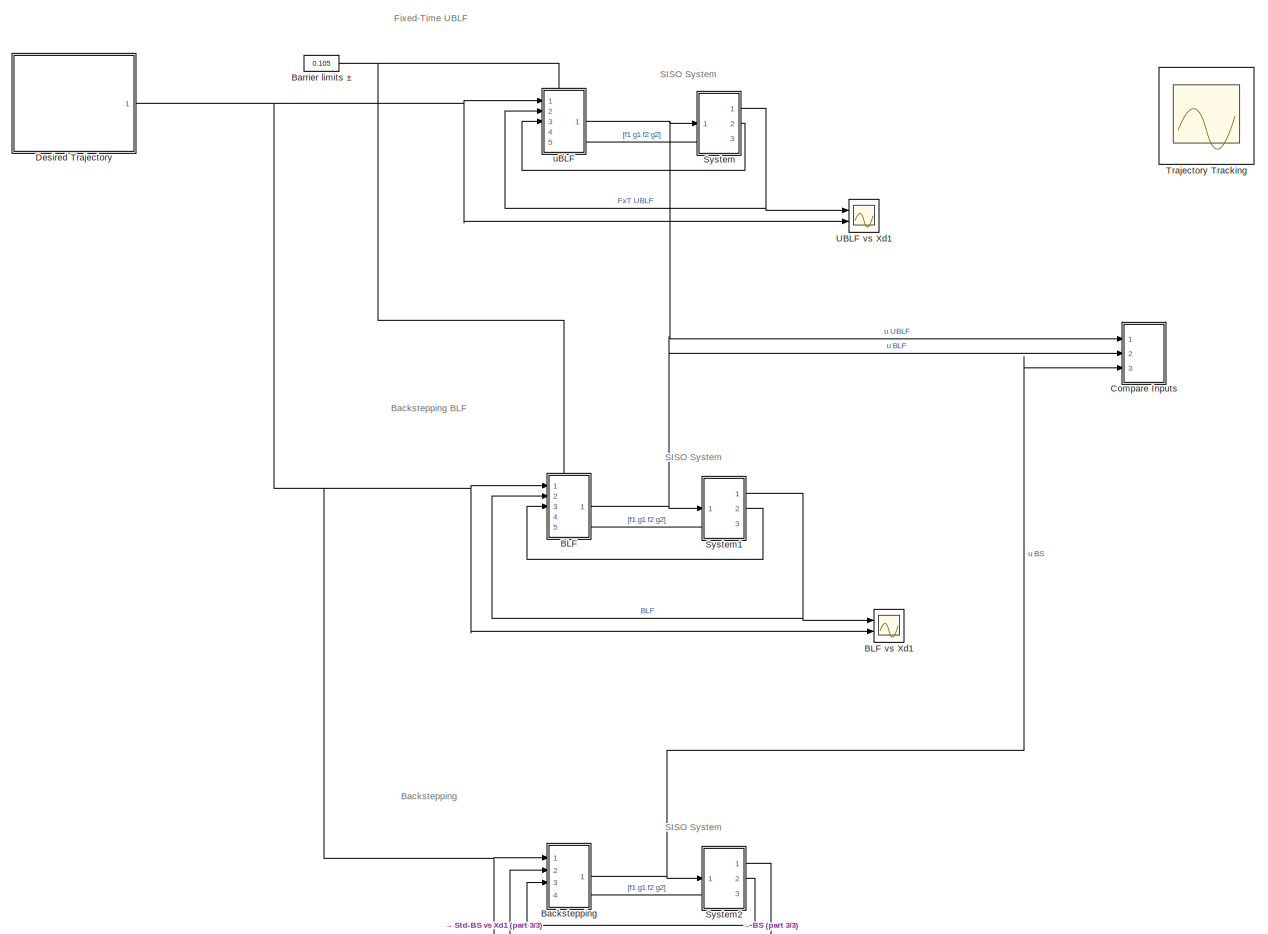
[diagram: root canvas - part 1/3, most of the canvas]
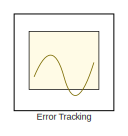
[diagram: root canvas - part 2/3, top right region]
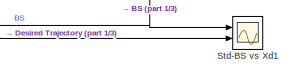
[diagram: root canvas - part 3/3, bottom center region]
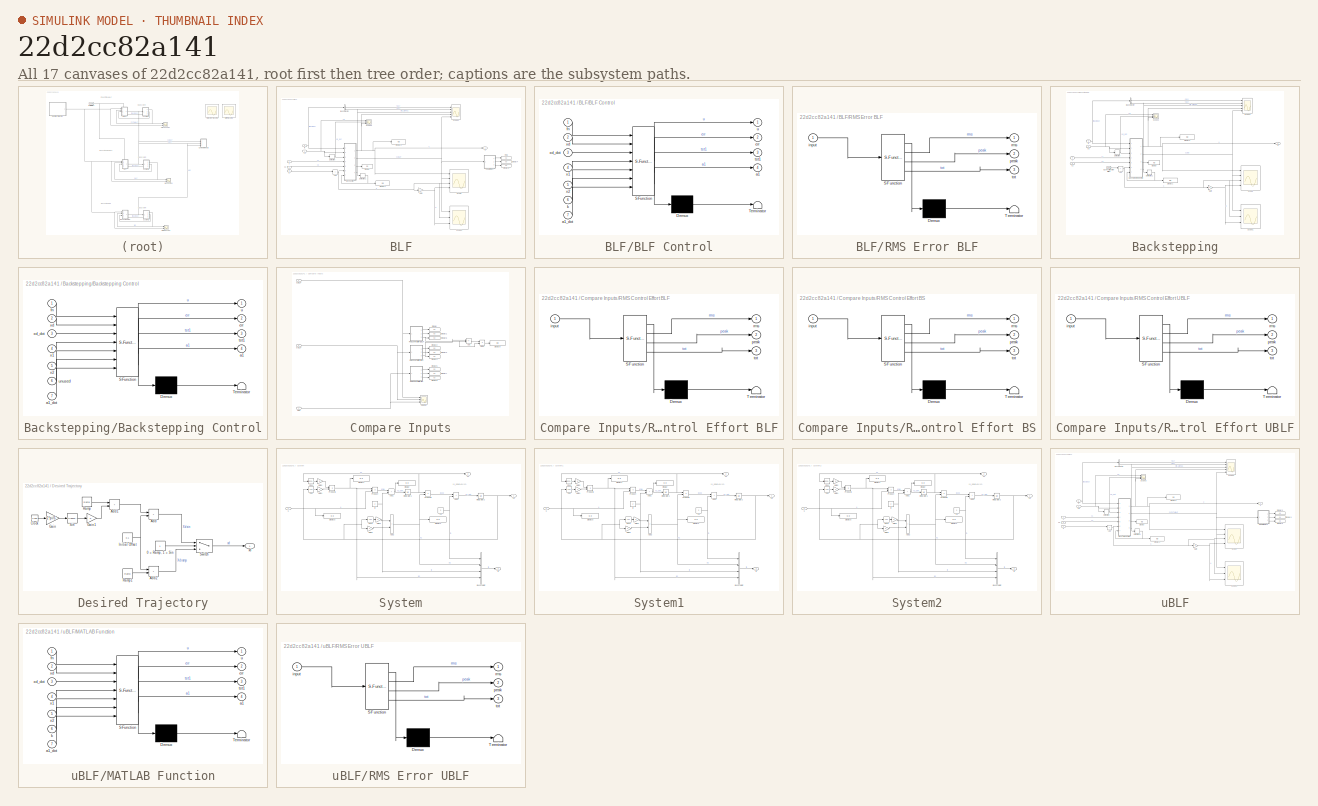
[diagram: thumbnail index - all 17 canvases of the model, root first then tree order]
MODEL slx_22d2cc82a141
KIND model
CONFIG AbsTol = auto
CONFIG EnableMultiTasking = off
CONFIG FixedStep = 0.001
CONFIG MaxStep = auto
CONFIG MinStep = auto
CONFIG RelTol = 1e-3
CONFIG SampleTimeConstraint = Unconstrained
CONFIG SolverName = ode4
CONFIG StartTime = 0.0
CONFIG StopTime = 1.5
WORKSPACE source: mxarray member
WORKSPACE scale_start: Simulink.Signal (value not decoded)
BLOCK [SubSystem] BLF
  PortSchema = {"entries":[{"content":{"sides":[{"content":{"connectorIds":["In1","In2","In3"]},"type":"ConnectorPlacement.EquallySpacedRectSide","uuid":"d2f7d382-6195-45e8-bd6d-6d057452a9ba"},{"content":{"connectorIds":["In5","Out1"],"side":"RIGHT"},"type":"ConnectorPlacement.EquallySpacedRectSide","uuid":"a1535a06-1066-4f88-a239-6dd18a46e73c"},{"content":{"connectorIds":["In4"],"side":"TOP"},"type":"ConnectorP...<+263ch>
  Ports = [5, 1]
  RequestExecContextInheritance = off
BLOCK [Scope] BLF vs Xd1
  Floating = off
  NumInputPorts = 2
  Ports = [2]
  ScopeSpecificationString = Simulink.scopes.TimeScopeBlockCfg('CurrentConfiguration', extmgr.ConfigurationSet(extmgr.Configuration('Core','General UI',true),extmgr.Configuration('Core','Source UI',true),extmgr.Configuration('Sources','WiredSimulink',true,'DataLoggingVariableName','ScopeData1'),extmgr.Configuration('Visuals','Time Domain',true,'SerializedDisplays',{struct('MinYLimReal','-0.75','MaxYLimReal','6.75','YLabelReal...<+1708ch>
BLOCK [Sum] BLF/Add
  IconShape = rectangular
  Ports = [2, 1]
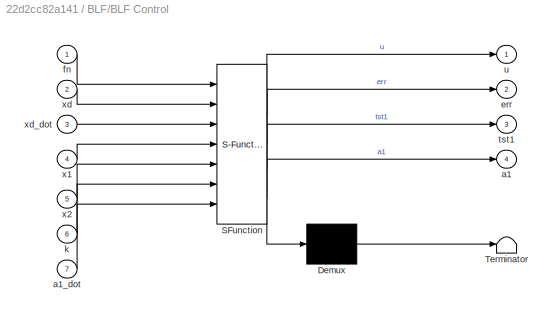
BLOCK [SubSystem] BLF/BLF Control
  ErrorFcn = Stateflow.Translate.translate
  NameLocation = top
  PermitHierarchicalResolution = ExplicitOnly
  Ports = [7, 4]
  RequestExecContextInheritance = off
  SFBlockType = MATLAB Function
  TreatAsAtomicUnit = on
BLOCK [Demux] BLF/BLF Control/ Demux 
  Outputs = 1
  Ports = [1, 1]
BLOCK [S-Function] BLF/BLF Control/ SFunction 
  EnableBusSupport = on
  FunctionName = sf_sfun
  PortCounts = [7 5]
  Ports = [7, 5]
  SFcnIsStateOwnerBlock = off
  SFunctionDeploymentMode = off
  Tag = Stateflow S-Function 3
BLOCK [Terminator] BLF/BLF Control/ Terminator 
BLOCK [Outport] BLF/BLF Control/a1
  Port = 4
BLOCK [Inport] BLF/BLF Control/a1_dot
  Port = 7
BLOCK [Outport] BLF/BLF Control/err
  Port = 2
BLOCK [Inport] BLF/BLF Control/fn
BLOCK [Inport] BLF/BLF Control/k
  Port = 6
BLOCK [Outport] BLF/BLF Control/tst1
  Port = 3
BLOCK [Outport] BLF/BLF Control/u
BLOCK [Inport] BLF/BLF Control/x1
  Port = 4
BLOCK [Inport] BLF/BLF Control/x2
  Port = 5
BLOCK [Inport] BLF/BLF Control/xd
  Port = 2
BLOCK [Inport] BLF/BLF Control/xd_dot
  Port = 3
BLOCK [BusSelector] BLF/Bus Selector
  OutputSignals = g1,g2
  Ports = [1, 2]
BLOCK [Derivative] BLF/Derivative
BLOCK [Derivative] BLF/Derivative1
BLOCK [Display] BLF/Display
  Decimation = 1
  Ports = [1]
BLOCK [Display] BLF/Display1
  Decimation = 1
  Ports = [1]
BLOCK [Display] BLF/Display2
  Decimation = 1
  Ports = [1]
BLOCK [Display] BLF/Display4
  Decimation = 1
  Ports = [1]
BLOCK [Display] BLF/Display6
  Decimation = 1
  Ports = [1]
BLOCK [Gain] BLF/Gain
  Gain = -1
BLOCK [Display] BLF/RMS
  Decimation = 1
  Ports = [1]
BLOCK [SubSystem] BLF/RMS Error BLF
  ErrorFcn = Stateflow.Translate.translate
  PermitHierarchicalResolution = ExplicitOnly
  Ports = [1, 3]
  RequestExecContextInheritance = off
  SFBlockType = MATLAB Function
  TreatAsAtomicUnit = on
BLOCK [Demux] BLF/RMS Error BLF/ Demux 
  Outputs = 1
  Ports = [1, 1]
BLOCK [S-Function] BLF/RMS Error BLF/ SFunction 
  EnableBusSupport = on
  FunctionName = sf_sfun
  PortCounts = [1 4]
  Ports = [1, 4]
  SFcnIsStateOwnerBlock = off
  SFunctionDeploymentMode = off
  Tag = Stateflow S-Function 7
BLOCK [Terminator] BLF/RMS Error BLF/ Terminator 
BLOCK [Inport] BLF/RMS Error BLF/input
BLOCK [Outport] BLF/RMS Error BLF/peak
  Port = 2
BLOCK [Outport] BLF/RMS Error BLF/rms
BLOCK [Outport] BLF/RMS Error BLF/tot
  Port = 3
BLOCK [Scope] BLF/Scope
  Floating = off
  NumInputPorts = 4
  Ports = [4]
  ScopeSpecificationString = Simulink.scopes.TimeScopeBlockCfg('CurrentConfiguration', extmgr.ConfigurationSet(extmgr.Configuration('Core','General UI',true),extmgr.Configuration('Core','Source UI',true),extmgr.Configuration('Sources','WiredSimulink',true,'DataLoggingVariableName','ScopeData1'),extmgr.Configuration('Visuals','Time Domain',true,'SerializedDisplays',{struct('MinYLimReal','-9537461.33214','MaxYLimReal','4207141....<+2423ch>
BLOCK [Scope] BLF/Scope1
  Floating = off
  NumInputPorts = 3
  Ports = [3]
  ScopeSpecificationString = Simulink.scopes.TimeScopeBlockCfg('CurrentConfiguration', extmgr.ConfigurationSet(extmgr.Configuration('Core','General UI',true,'FigureColor',[0 0 0]),extmgr.Configuration('Core','Source UI',true),extmgr.Configuration('Sources','WiredSimulink',true,'DataLoggingVariableName','ScopeData1'),extmgr.Configuration('Visuals','Time Domain',true,'PlotType','Line','SerializedDisplays',{struct('MinYLimReal',...<+1815ch>
BLOCK [Scope] BLF/Scope2
  Floating = off
  NumInputPorts = 5
  Ports = [5]
  ScopeSpecificationString = Simulink.scopes.TimeScopeBlockCfg('CurrentConfiguration', extmgr.ConfigurationSet(extmgr.Configuration('Core','General UI',true),extmgr.Configuration('Core','Source UI',true),extmgr.Configuration('Sources','WiredSimulink',true,'DataLoggingVariableName','ScopeData1'),extmgr.Configuration('Visuals','Time Domain',true,'SerializedDisplays',{struct('MinYLimReal','-1.76528','MaxYLimReal','24.66333','YLa...<+5105ch>
BLOCK [Scope] BLF/Scope3
  Floating = off
  NumInputPorts = 3
  Ports = [3]
  ScopeSpecificationString = Simulink.scopes.TimeScopeBlockCfg('CurrentConfiguration', extmgr.ConfigurationSet(extmgr.Configuration('Core','General UI',true),extmgr.Configuration('Core','Source UI',true),extmgr.Configuration('Sources','WiredSimulink',true,'DataLoggingVariableName','ScopeData2'),extmgr.Configuration('Visuals','Time Domain',true,'SerializedDisplays',{struct('MinYLimReal','-0.25','MaxYLimReal','12.25','YLabelRea...<+2965ch>  <repeated x3 — deduplicated; at blocks: Scope3>
BLOCK [Inport] BLF/fn
  NameLocation = left
  Port = 5
BLOCK [Inport] BLF/k
  NameLocation = left
  Port = 4
BLOCK [Outport] BLF/u
BLOCK [Inport] BLF/x
  NameLocation = left
  Port = 2
BLOCK [Inport] BLF/x2
  NameLocation = left
  Port = 3
BLOCK [Inport] BLF/xd
  NameLocation = left
BLOCK [SubSystem] Backstepping
  PortSchema = {"entries":[{"content":{"sides":[{"content":{"connectorIds":["In1","In2","In3"]},"type":"ConnectorPlacement.EquallySpacedRectSide","uuid":"d2f7d382-6195-45e8-bd6d-6d057452a9ba"},{"content":{"connectorIds":["In4","Out1"],"side":"RIGHT"},"type":"ConnectorPlacement.EquallySpacedRectSide","uuid":"a1535a06-1066-4f88-a239-6dd18a46e73c"},{"content":{"connectorIds":[],"side":"TOP"},"type":"ConnectorPlacem...<+258ch>
  Ports = [4, 1]
  RequestExecContextInheritance = off
BLOCK [Sum] Backstepping/Add
  IconShape = rectangular
  Ports = [2, 1]
BLOCK [Constant] Backstepping/BLF position error limits ±
  NameLocation = left
  Value = 0.11
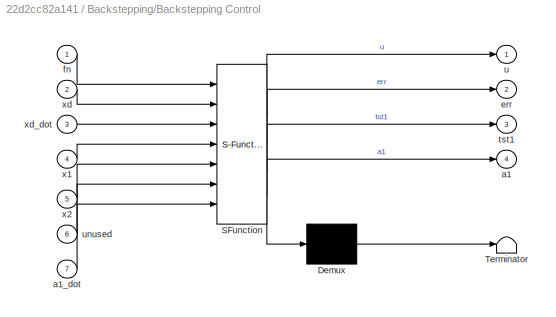
BLOCK [SubSystem] Backstepping/Backstepping Control
  ErrorFcn = Stateflow.Translate.translate
  NameLocation = top
  PermitHierarchicalResolution = ExplicitOnly
  Ports = [7, 4]
  RequestExecContextInheritance = off
  SFBlockType = MATLAB Function
  TreatAsAtomicUnit = on
BLOCK [Demux] Backstepping/Backstepping Control/ Demux 
  Outputs = 1
  Ports = [1, 1]
BLOCK [S-Function] Backstepping/Backstepping Control/ SFunction 
  EnableBusSupport = on
  FunctionName = sf_sfun
  PortCounts = [7 5]
  Ports = [7, 5]
  SFcnIsStateOwnerBlock = off
  SFunctionDeploymentMode = off
  Tag = Stateflow S-Function 4
BLOCK [Terminator] Backstepping/Backstepping Control/ Terminator 
BLOCK [Outport] Backstepping/Backstepping Control/a1
  Port = 4
BLOCK [Inport] Backstepping/Backstepping Control/a1_dot
  Port = 7
BLOCK [Outport] Backstepping/Backstepping Control/err
  Port = 2
BLOCK [Inport] Backstepping/Backstepping Control/fn
BLOCK [Outport] Backstepping/Backstepping Control/tst1
  Port = 3
BLOCK [Outport] Backstepping/Backstepping Control/u
BLOCK [Inport] Backstepping/Backstepping Control/unused
  Port = 6
BLOCK [Inport] Backstepping/Backstepping Control/x1
  Port = 4
BLOCK [Inport] Backstepping/Backstepping Control/x2
  Port = 5
BLOCK [Inport] Backstepping/Backstepping Control/xd
  Port = 2
BLOCK [Inport] Backstepping/Backstepping Control/xd_dot
  Port = 3
BLOCK [BusSelector] Backstepping/Bus Selector
  OutputSignals = g1,g2
  Ports = [1, 2]
BLOCK [Derivative] Backstepping/Derivative
BLOCK [Derivative] Backstepping/Derivative1
BLOCK [Display] Backstepping/Display
  Decimation = 1
  Ports = [1]
BLOCK [Display] Backstepping/Display1
  Decimation = 1
  Ports = [1]
BLOCK [Display] Backstepping/Display2
  Decimation = 1
  Ports = [1]
BLOCK [Gain] Backstepping/Gain
  Gain = -1
BLOCK [Scope] Backstepping/Scope
  Floating = off
  NumInputPorts = 4
  Ports = [4]
  ScopeSpecificationString = Simulink.scopes.TimeScopeBlockCfg('CurrentConfiguration', extmgr.ConfigurationSet(extmgr.Configuration('Core','General UI',true),extmgr.Configuration('Core','Source UI',true),extmgr.Configuration('Sources','WiredSimulink',true,'DataLoggingVariableName','ScopeData1'),extmgr.Configuration('Visuals','Time Domain',true,'SerializedDisplays',{struct('MinYLimReal','-89301.07005','MaxYLimReal','15045.0131...<+2436ch>
BLOCK [Scope] Backstepping/Scope1
  Floating = off
  NumInputPorts = 3
  Ports = [3]
  ScopeSpecificationString = Simulink.scopes.TimeScopeBlockCfg('CurrentConfiguration', extmgr.ConfigurationSet(extmgr.Configuration('Core','General UI',true,'FigureColor',[0 0 0]),extmgr.Configuration('Core','Source UI',true),extmgr.Configuration('Sources','WiredSimulink',true,'DataLoggingVariableName','ScopeData1'),extmgr.Configuration('Visuals','Time Domain',true,'PlotType','Line','SerializedDisplays',{struct('MinYLimReal',...<+1815ch>
BLOCK [Scope] Backstepping/Scope2
  Floating = off
  NumInputPorts = 5
  Ports = [5]
  ScopeSpecificationString = Simulink.scopes.TimeScopeBlockCfg('CurrentConfiguration', extmgr.ConfigurationSet(extmgr.Configuration('Core','General UI',true),extmgr.Configuration('Core','Source UI',true),extmgr.Configuration('Sources','WiredSimulink',true,'DataLoggingVariableName','ScopeData1'),extmgr.Configuration('Visuals','Time Domain',true,'SerializedDisplays',{struct('MinYLimReal','-1.76528','MaxYLimReal','24.66333','YLa...<+5105ch>
BLOCK [Scope] Backstepping/Scope3
  Floating = off
  NumInputPorts = 3
  Ports = [3]
BLOCK [Inport] Backstepping/fn
  NameLocation = left
  Port = 4
BLOCK [Outport] Backstepping/u
BLOCK [Inport] Backstepping/x
  NameLocation = left
  Port = 2
BLOCK [Inport] Backstepping/x2
  NameLocation = left
  Port = 3
BLOCK [Inport] Backstepping/xd
  NameLocation = left
BLOCK [Constant] Barrier limits ±
  NameLocation = left
  Value = 0.105
BLOCK [SubSystem] Compare Inputs
  Commented = on
  Ports = [3]
  RequestExecContextInheritance = off
BLOCK [Sum] Compare Inputs/Add
  IconShape = rectangular
  Inputs = +-
  Ports = [2, 1]
BLOCK [Scope] Compare Inputs/Control
  Floating = off
  NumInputPorts = 3
  Ports = [3]
  ScopeSpecificationString = Simulink.scopes.TimeScopeBlockCfg('CurrentConfiguration', extmgr.ConfigurationSet(extmgr.Configuration('Core','General UI',true),extmgr.Configuration('Core','Source UI',true),extmgr.Configuration('Sources','WiredSimulink',true,'DataLoggingVariableName','ScopeData2'),extmgr.Configuration('Visuals','Time Domain',true,'SerializedDisplays',{struct('MinYLimReal','-55327.45815','MaxYLimReal','19831.0146...<+1752ch>
BLOCK [Display] Compare Inputs/Display
  Decimation = 1
  Ports = [1]
BLOCK [Display] Compare Inputs/Display1
  Decimation = 1
  Ports = [1]
BLOCK [Display] Compare Inputs/Display2
  Decimation = 1
  Ports = [1]
BLOCK [Display] Compare Inputs/Display3
  Decimation = 1
  Ports = [1]
BLOCK [Display] Compare Inputs/Display4
  Decimation = 1
  Ports = [1]
BLOCK [Display] Compare Inputs/Display5
  Decimation = 1
  Ports = [1]
BLOCK [Display] Compare Inputs/Display6
  Decimation = 1
  Ports = [1]
BLOCK [Display] Compare Inputs/Display7
  Decimation = 1
  Ports = [1]
BLOCK [Display] Compare Inputs/Display8
  Decimation = 1
  Ports = [1]
BLOCK [Display] Compare Inputs/Display9
  Decimation = 1
  Ports = [1]
BLOCK [Product] Compare Inputs/Divide
  Inputs = */
  Ports = [2, 1]
BLOCK [SubSystem] Compare Inputs/RMS Control Effort BLF
  ErrorFcn = Stateflow.Translate.translate
  PermitHierarchicalResolution = ExplicitOnly
  Ports = [1, 3]
  RequestExecContextInheritance = off
  SFBlockType = MATLAB Function
  TreatAsAtomicUnit = on
BLOCK [Demux] Compare Inputs/RMS Control Effort BLF/ Demux 
  Outputs = 1
  Ports = [1, 1]
BLOCK [S-Function] Compare Inputs/RMS Control Effort BLF/ SFunction 
  EnableBusSupport = on
  FunctionName = sf_sfun
  PortCounts = [1 4]
  Ports = [1, 4]
  SFcnIsStateOwnerBlock = off
  SFunctionDeploymentMode = off
  Tag = Stateflow S-Function 1
BLOCK [Terminator] Compare Inputs/RMS Control Effort BLF/ Terminator 
BLOCK [Inport] Compare Inputs/RMS Control Effort BLF/input
BLOCK [Outport] Compare Inputs/RMS Control Effort BLF/peak
  Port = 2
BLOCK [Outport] Compare Inputs/RMS Control Effort BLF/rms
BLOCK [Outport] Compare Inputs/RMS Control Effort BLF/tot
  Port = 3
BLOCK [SubSystem] Compare Inputs/RMS Control Effort BS
  ErrorFcn = Stateflow.Translate.translate
  PermitHierarchicalResolution = ExplicitOnly
  Ports = [1, 3]
  RequestExecContextInheritance = off
  SFBlockType = MATLAB Function
  TreatAsAtomicUnit = on
BLOCK [Demux] Compare Inputs/RMS Control Effort BS/ Demux 
  Outputs = 1
  Ports = [1, 1]
BLOCK [S-Function] Compare Inputs/RMS Control Effort BS/ SFunction 
  EnableBusSupport = on
  FunctionName = sf_sfun
  PortCounts = [1 4]
  Ports = [1, 4]
  SFcnIsStateOwnerBlock = off
  SFunctionDeploymentMode = off
  Tag = Stateflow S-Function 5
BLOCK [Terminator] Compare Inputs/RMS Control Effort BS/ Terminator 
BLOCK [Inport] Compare Inputs/RMS Control Effort BS/input
BLOCK [Outport] Compare Inputs/RMS Control Effort BS/peak
  Port = 2
BLOCK [Outport] Compare Inputs/RMS Control Effort BS/rms
BLOCK [Outport] Compare Inputs/RMS Control Effort BS/tot
  Port = 3
BLOCK [SubSystem] Compare Inputs/RMS Control Effort UBLF
  ErrorFcn = Stateflow.Translate.translate
  PermitHierarchicalResolution = ExplicitOnly
  Ports = [1, 3]
  RequestExecContextInheritance = off
  SFBlockType = MATLAB Function
  TreatAsAtomicUnit = on
BLOCK [Demux] Compare Inputs/RMS Control Effort UBLF/ Demux 
  Outputs = 1
  Ports = [1, 1]
BLOCK [S-Function] Compare Inputs/RMS Control Effort UBLF/ SFunction 
  EnableBusSupport = on
  FunctionName = sf_sfun
  PortCounts = [1 4]
  Ports = [1, 4]
  SFcnIsStateOwnerBlock = off
  SFunctionDeploymentMode = off
  Tag = Stateflow S-Function 8
BLOCK [Terminator] Compare Inputs/RMS Control Effort UBLF/ Terminator 
BLOCK [Inport] Compare Inputs/RMS Control Effort UBLF/input
BLOCK [Outport] Compare Inputs/RMS Control Effort UBLF/peak
  Port = 2
BLOCK [Outport] Compare Inputs/RMS Control Effort UBLF/rms
BLOCK [Outport] Compare Inputs/RMS Control Effort UBLF/tot
  Port = 3
BLOCK [Inport] Compare Inputs/u ABLF
  Port = 2
BLOCK [Inport] Compare Inputs/u BS
  Port = 3
BLOCK [Inport] Compare Inputs/u UBLF
BLOCK [SubSystem] Desired Trajectory
  Ports = [0, 1]
  RequestExecContextInheritance = off
BLOCK [Constant] Desired Trajectory/0 = Ramp, 1 = Sin
BLOCK [Sum] Desired Trajectory/Add
  IconShape = rectangular
  Ports = [2, 1]
BLOCK [Sum] Desired Trajectory/Add1
  IconShape = rectangular
  Ports = [2, 1]
BLOCK [Sum] Desired Trajectory/Add2
  IconShape = rectangular
  Ports = [2, 1]
BLOCK [Clock] Desired Trajectory/Clock
BLOCK [Gain] Desired Trajectory/Gain
  Gain = 2*pi/5
BLOCK [Gain] Desired Trajectory/Gain1
BLOCK [Constant] Desired Trajectory/Initial Offset
  Value = 0.1
BLOCK [Reference] Desired Trajectory/Ramp  REF=simulink/Sources/Ramp
  Ports = [0, 1]
  SourceBlock = simulink/Sources/Ramp
  SourceProductBaseCode = SL
  SourceType = Ramp
BLOCK [Reference] Desired Trajectory/Ramp1  REF=simulink/Sources/Ramp
  Ports = [0, 1]
  SourceBlock = simulink/Sources/Ramp
  SourceProductBaseCode = SL
  SourceType = Ramp
BLOCK [Trigonometry] Desired Trajectory/Sin
  Ports = [1, 1]
BLOCK [Switch] Desired Trajectory/Switch
  Criteria = u2 > Threshold
  InputSameDT = off
  SaturateOnIntegerOverflow = off
BLOCK [Outport] Desired Trajectory/xd
BLOCK [Scope] Error Tracking
  Floating = on
  NameLocation = top
  NumInputPorts = 1
  Ports = []
  ScopeSpecificationString = Simulink.scopes.TimeScopeBlockCfg('CurrentConfiguration', extmgr.ConfigurationSet(extmgr.Configuration('Core','General UI',true,'FigureColor',[1 1 1]),extmgr.Configuration('Core','Source UI',true),extmgr.Configuration('Sources','WiredSimulink',true,'DataLoggingVariableName','ScopeData4'),extmgr.Configuration('Visuals','Time Domain',true,'SerializedDisplays',{struct('MinYLimReal','-0.11667','MaxYLi...<+2083ch>
BLOCK [Scope] Std-BS vs Xd1
  Floating = off
  NumInputPorts = 2
  Ports = [2]
  ScopeSpecificationString = Simulink.scopes.TimeScopeBlockCfg('CurrentConfiguration', extmgr.ConfigurationSet(extmgr.Configuration('Core','General UI',true),extmgr.Configuration('Core','Source UI',true),extmgr.Configuration('Sources','WiredSimulink',true,'DataLoggingVariableName','ScopeData3'),extmgr.Configuration('Visuals','Time Domain',true,'SerializedDisplays',{struct('MinYLimReal','-0.63751','MaxYLimReal','5.73757','YLab...<+1725ch>
BLOCK [SubSystem] System
  PortSchema = {"entries":[{"content":{"sides":[{"content":{"connectorIds":["Out3","In1"]},"type":"ConnectorPlacement.EquallySpacedRectSide","uuid":"44a46657-7d00-4f6d-80a4-fbe778e41b73"},{"content":{"connectorIds":["Out1","Out2"],"side":"RIGHT"},"type":"ConnectorPlacement.EquallySpacedRectSide","uuid":"1134a23b-2977-450f-b075-fdef5e2c40fa"},{"content":{"connectorIds":[],"side":"TOP"},"type":"ConnectorPlacement....<+254ch>  <repeated x3 — deduplicated; at blocks: System, System1, System2>
  Ports = [1, 3]
  RequestExecContextInheritance = off
BLOCK [Sum] System/Add1
  IconShape = rectangular
  Ports = [2, 1]
BLOCK [Sum] System/Add2
  IconShape = rectangular
  Ports = [2, 1]
BLOCK [Sum] System/Add3
  IconShape = rectangular
  Ports = [2, 1]
BLOCK [BusCreator] System/Bus Creator
  DisplayOption = bar
  InheritFromInputs = on
  Inputs = 4
  Ports = [4, 1]
BLOCK [Trigonometry] System/Cos
  Operator = cos
  Ports = [1, 1]
BLOCK [Trigonometry] System/Cos1
  Ports = [1, 1]
BLOCK [Trigonometry] System/Cos3
  Operator = cos
  Ports = [1, 1]
BLOCK [Display] System/Display
  Decimation = 1
  Ports = [1]
BLOCK [Display] System/Display1
  Decimation = 1
  Ports = [1]
BLOCK [Display] System/Display2
  Decimation = 1
  Ports = [1]
BLOCK [Display] System/Display3
  Decimation = 1
  Ports = [1]
BLOCK [Constant] System/F1
  NameLocation = left
  Value = 2
BLOCK [Gain] System/Gain1
  Gain = 2
BLOCK [Gain] System/Gain2
  Gain = 5
BLOCK [Gain] System/Gain3
  Gain = 2
BLOCK [Gain] System/Gain4
  Gain = 5
BLOCK [Integrator] System/Integrator1
  IgnoreLimit = on
  InitialCondition = 0.01
  Ports = [1, 1]
BLOCK [Integrator] System/Integrator2
  Ports = [1, 1]
BLOCK [Product] System/Product
  Ports = [2, 1]
BLOCK [Product] System/Product1
  Ports = [2, 1]
BLOCK [Product] System/Product2
  Ports = [2, 1]
BLOCK [Constant] System/f2
  NameLocation = left
  Value = 2
BLOCK [Outport] System/fn
  NameLocation = right
  Port = 3
  PortDimensions = 4
BLOCK [Inport] System/u
BLOCK [Outport] System/x1
  NameLocation = right
BLOCK [Outport] System/x2
  NameLocation = right
  Port = 2
BLOCK [SubSystem] System1
  Ports = [1, 3]
  RequestExecContextInheritance = off
BLOCK [Sum] System1/Add1
  IconShape = rectangular
  Ports = [2, 1]
BLOCK [Sum] System1/Add2
  IconShape = rectangular
  Ports = [2, 1]
BLOCK [Sum] System1/Add3
  IconShape = rectangular
  Ports = [2, 1]
BLOCK [BusCreator] System1/Bus Creator
  DisplayOption = bar
  InheritFromInputs = on
  Inputs = 4
  Ports = [4, 1]
BLOCK [Trigonometry] System1/Cos
  Operator = cos
  Ports = [1, 1]
BLOCK [Trigonometry] System1/Cos1
  Ports = [1, 1]
BLOCK [Trigonometry] System1/Cos3
  Operator = cos
  Ports = [1, 1]
BLOCK [Display] System1/Display
  Decimation = 1
  Ports = [1]
BLOCK [Display] System1/Display1
  Decimation = 1
  Ports = [1]
BLOCK [Display] System1/Display2
  Decimation = 1
  Ports = [1]
BLOCK [Display] System1/Display3
  Decimation = 1
  Ports = [1]
BLOCK [Constant] System1/F1
  NameLocation = left
  Value = 2
BLOCK [Gain] System1/Gain1
  Gain = 2
BLOCK [Gain] System1/Gain2
  Gain = 5
BLOCK [Gain] System1/Gain3
  Gain = 2
BLOCK [Gain] System1/Gain4
  Gain = 5
BLOCK [Integrator] System1/Integrator1
  IgnoreLimit = on
  InitialCondition = 0.01
  Ports = [1, 1]
BLOCK [Integrator] System1/Integrator2
  Ports = [1, 1]
BLOCK [Product] System1/Product
  Ports = [2, 1]
BLOCK [Product] System1/Product1
  Ports = [2, 1]
BLOCK [Product] System1/Product2
  Ports = [2, 1]
BLOCK [Constant] System1/f2
  NameLocation = left
  Value = 2
BLOCK [Outport] System1/fn
  NameLocation = right
  Port = 3
  PortDimensions = 4
BLOCK [Inport] System1/u
BLOCK [Outport] System1/x1
  NameLocation = right
BLOCK [Outport] System1/x2
  NameLocation = right
  Port = 2
BLOCK [SubSystem] System2
  Ports = [1, 3]
  RequestExecContextInheritance = off
BLOCK [Sum] System2/Add1
  IconShape = rectangular
  Ports = [2, 1]
BLOCK [Sum] System2/Add2
  IconShape = rectangular
  Ports = [2, 1]
BLOCK [Sum] System2/Add3
  IconShape = rectangular
  Ports = [2, 1]
BLOCK [BusCreator] System2/Bus Creator
  DisplayOption = bar
  InheritFromInputs = on
  Inputs = 4
  Ports = [4, 1]
BLOCK [Trigonometry] System2/Cos
  Operator = cos
  Ports = [1, 1]
BLOCK [Trigonometry] System2/Cos1
  Ports = [1, 1]
BLOCK [Trigonometry] System2/Cos3
  Operator = cos
  Ports = [1, 1]
BLOCK [Display] System2/Display
  Decimation = 1
  Ports = [1]
BLOCK [Display] System2/Display1
  Decimation = 1
  Ports = [1]
BLOCK [Display] System2/Display2
  Decimation = 1
  Ports = [1]
BLOCK [Display] System2/Display3
  Decimation = 1
  Ports = [1]
BLOCK [Constant] System2/F1
  NameLocation = left
  Value = 2
BLOCK [Gain] System2/Gain1
  Gain = 2
BLOCK [Gain] System2/Gain2
  Gain = 5
BLOCK [Gain] System2/Gain3
  Gain = 2
BLOCK [Gain] System2/Gain4
  Gain = 5
BLOCK [Integrator] System2/Integrator1
  IgnoreLimit = on
  InitialCondition = 0.01
  Ports = [1, 1]
BLOCK [Integrator] System2/Integrator2
  Ports = [1, 1]
BLOCK [Product] System2/Product
  Ports = [2, 1]
BLOCK [Product] System2/Product1
  Ports = [2, 1]
BLOCK [Product] System2/Product2
  Ports = [2, 1]
BLOCK [Constant] System2/f2
  NameLocation = left
  Value = 2
BLOCK [Outport] System2/fn
  NameLocation = right
  Port = 3
  PortDimensions = 4
BLOCK [Inport] System2/u
BLOCK [Outport] System2/x1
  NameLocation = right
BLOCK [Outport] System2/x2
  NameLocation = right
  Port = 2
BLOCK [Scope] Trajectory Tracking
  Floating = on
  NameLocation = top
  NumInputPorts = 1
  Ports = []
  ScopeSpecificationString = Simulink.scopes.TimeScopeBlockCfg('CurrentConfiguration', extmgr.ConfigurationSet(extmgr.Configuration('Core','General UI',true,'FigureColor',[1 1 1]),extmgr.Configuration('Core','Source UI',true),extmgr.Configuration('Sources','WiredSimulink',true,'DataLoggingVariableName','ScopeData1'),extmgr.Configuration('Visuals','Time Domain',true,'SerializedDisplays',{struct('MinYLimReal','-0.09596','MaxYLi...<+2051ch>
BLOCK [Scope] UBLF vs Xd1
  Floating = off
  NumInputPorts = 2
  Ports = [2]
  ScopeSpecificationString = Simulink.scopes.TimeScopeBlockCfg('CurrentConfiguration', extmgr.ConfigurationSet(extmgr.Configuration('Core','General UI',true),extmgr.Configuration('Core','Source UI',true),extmgr.Configuration('Sources','WiredSimulink',true),extmgr.Configuration('Visuals','Time Domain',true,'SerializedDisplays',{struct('MinYLimReal','-0.75','MaxYLimReal','6.75','YLabelReal','x (state)','MinYLimMag','0.00000','M...<+1674ch>
BLOCK [SubSystem] uBLF
  PortSchema = {"entries":[{"content":{"sides":[{"content":{"connectorIds":["In1","In2","In3"]},"type":"ConnectorPlacement.EquallySpacedRectSide","uuid":"d2f7d382-6195-45e8-bd6d-6d057452a9ba"},{"content":{"connectorIds":["In5","Out1"],"side":"RIGHT"},"type":"ConnectorPlacement.EquallySpacedRectSide","uuid":"a1535a06-1066-4f88-a239-6dd18a46e73c"},{"content":{"connectorIds":["In4"],"side":"TOP"},"type":"ConnectorP...<+263ch>
  Ports = [5, 1]
  RequestExecContextInheritance = off
BLOCK [Sum] uBLF/Add
  IconShape = rectangular
  Ports = [2, 1]
BLOCK [BusSelector] uBLF/Bus Selector
  OutputSignals = g1,g2
  Ports = [1, 2]
BLOCK [Derivative] uBLF/Derivative
BLOCK [Derivative] uBLF/Derivative1
BLOCK [Display] uBLF/Display
  Decimation = 1
  Ports = [1]
BLOCK [Display] uBLF/Display1
  Decimation = 1
  Ports = [1]
BLOCK [Display] uBLF/Display2
  Decimation = 1
  Ports = [1]
BLOCK [Display] uBLF/Display3
  Decimation = 1
  Ports = [1]
BLOCK [Display] uBLF/Display4
  Decimation = 1
  Ports = [1]
BLOCK [Display] uBLF/Display6
  Decimation = 1
  Ports = [1]
BLOCK [Gain] uBLF/Gain
  Gain = -1
BLOCK [SubSystem] uBLF/MATLAB Function
  ErrorFcn = Stateflow.Translate.translate
  NameLocation = top
  PermitHierarchicalResolution = ExplicitOnly
  Ports = [7, 4]
  RequestExecContextInheritance = off
  SFBlockType = MATLAB Function
  TreatAsAtomicUnit = on
BLOCK [Demux] uBLF/MATLAB Function/ Demux 
  Outputs = 1
  Ports = [1, 1]
BLOCK [S-Function] uBLF/MATLAB Function/ SFunction 
  EnableBusSupport = on
  FunctionName = sf_sfun
  PortCounts = [7 5]
  Ports = [7, 5]
  SFcnIsStateOwnerBlock = off
  SFunctionDeploymentMode = off
  Tag = Stateflow S-Function 2
BLOCK [Terminator] uBLF/MATLAB Function/ Terminator 
BLOCK [Outport] uBLF/MATLAB Function/a1
  Port = 4
BLOCK [Inport] uBLF/MATLAB Function/a1_dot
  Port = 7
BLOCK [Outport] uBLF/MATLAB Function/err
  Port = 2
BLOCK [Inport] uBLF/MATLAB Function/fn
BLOCK [Inport] uBLF/MATLAB Function/k
  Port = 6
BLOCK [Outport] uBLF/MATLAB Function/tst1
  Port = 3
BLOCK [Outport] uBLF/MATLAB Function/u
BLOCK [Inport] uBLF/MATLAB Function/x1
  Port = 4
BLOCK [Inport] uBLF/MATLAB Function/x2
  Port = 5
BLOCK [Inport] uBLF/MATLAB Function/xd
  Port = 2
BLOCK [Inport] uBLF/MATLAB Function/xd_dot
  Port = 3
BLOCK [SubSystem] uBLF/RMS Error UBLF
  ErrorFcn = Stateflow.Translate.translate
  PermitHierarchicalResolution = ExplicitOnly
  Ports = [1, 3]
  RequestExecContextInheritance = off
  SFBlockType = MATLAB Function
  TreatAsAtomicUnit = on
BLOCK [Demux] uBLF/RMS Error UBLF/ Demux 
  Outputs = 1
  Ports = [1, 1]
BLOCK [S-Function] uBLF/RMS Error UBLF/ SFunction 
  EnableBusSupport = on
  FunctionName = sf_sfun
  PortCounts = [1 4]
  Ports = [1, 4]
  SFcnIsStateOwnerBlock = off
  SFunctionDeploymentMode = off
  Tag = Stateflow S-Function 6
BLOCK [Terminator] uBLF/RMS Error UBLF/ Terminator 
BLOCK [Inport] uBLF/RMS Error UBLF/input
BLOCK [Outport] uBLF/RMS Error UBLF/peak
  Port = 2
BLOCK [Outport] uBLF/RMS Error UBLF/rms
BLOCK [Outport] uBLF/RMS Error UBLF/tot
  Port = 3
BLOCK [Scope] uBLF/Scope
  Floating = off
  NumInputPorts = 4
  Ports = [4]
  ScopeSpecificationString = Simulink.scopes.TimeScopeBlockCfg('CurrentConfiguration', extmgr.ConfigurationSet(extmgr.Configuration('Core','General UI',true),extmgr.Configuration('Core','Source UI',true),extmgr.Configuration('Sources','WiredSimulink',true,'DataLoggingVariableName','ScopeData1'),extmgr.Configuration('Visuals','Time Domain',true,'SerializedDisplays',{struct('MinYLimReal','-10066.22812','MaxYLimReal','15069.2353...<+2443ch>
BLOCK [Scope] uBLF/Scope1
  Floating = off
  NumInputPorts = 3
  Ports = [3]
  ScopeSpecificationString = Simulink.scopes.TimeScopeBlockCfg('CurrentConfiguration', extmgr.ConfigurationSet(extmgr.Configuration('Core','General UI',true,'FigureColor',[0 0 0]),extmgr.Configuration('Core','Source UI',true),extmgr.Configuration('Sources','WiredSimulink',true,'DataLoggingVariableName','ScopeData1'),extmgr.Configuration('Visuals','Time Domain',true,'PlotType','Line','SerializedDisplays',{struct('MinYLimReal',...<+1848ch>
BLOCK [Scope] uBLF/Scope2
  Floating = off
  NumInputPorts = 5
  Ports = [5]
  ScopeSpecificationString = Simulink.scopes.TimeScopeBlockCfg('CurrentConfiguration', extmgr.ConfigurationSet(extmgr.Configuration('Core','General UI',true),extmgr.Configuration('Core','Source UI',true),extmgr.Configuration('Sources','WiredSimulink',true,'DataLoggingVariableName','ScopeData1'),extmgr.Configuration('Visuals','Time Domain',true,'SerializedDisplays',{struct('MinYLimReal','-1.76528','MaxYLimReal','24.66333','YLa...<+5114ch>
BLOCK [Scope] uBLF/Scope3
  Floating = off
  NumInputPorts = 3
  Ports = [3]
BLOCK [Inport] uBLF/fn
  NameLocation = left
  Port = 5
BLOCK [Inport] uBLF/k
  NameLocation = left
  Port = 4
BLOCK [Outport] uBLF/u
BLOCK [Inport] uBLF/x
  NameLocation = left
  Port = 2
BLOCK [Inport] uBLF/x2
  NameLocation = left
  Port = 3
BLOCK [Inport] uBLF/xd
  NameLocation = left
ANNOTATION (root): SISO System
ANNOTATION (root): Backstepping
ANNOTATION (root): Backstepping BLF
ANNOTATION (root): Fixed-Time UBLF
ANNOTATION System: x1_dot = f1 + g1(x2)
ANNOTATION System1: x1_dot = f1 + g1(x2)
ANNOTATION System2: x1_dot = f1 + g1(x2)
NET BLF/Add:1 -> BLF/BLF Control:6, BLF/Gain:1, BLF/Scope1:2, BLF/Scope:3
NET BLF/BLF Control:1 -> BLF/Display2:1, BLF/Scope2:4, BLF/Scope3:3, BLF/Scope:1, BLF/u:1
NET BLF/BLF Control:2 -> BLF/RMS Error BLF:1, BLF/Scope1:1, BLF/Scope2:5, BLF/Scope:2
LINE BLF/BLF Control:3 -> BLF/Display:1
NET BLF/BLF Control:4 -> BLF/Derivative1:1, BLF/Scope2:3
LINE BLF/Bus Selector:1 -> BLF/Scope2:1
LINE BLF/Bus Selector:2 -> BLF/Scope2:2
NET BLF/Derivative1:1 -> BLF/BLF Control:7, BLF/Display1:1
NET BLF/Derivative:1 -> BLF/BLF Control:3, BLF/Scope3:2
NET BLF/Gain:1 -> BLF/Scope1:3, BLF/Scope:4
LINE BLF/RMS Error BLF:1 -> BLF/RMS:1
LINE BLF/RMS Error BLF:2 -> BLF/Display4:1
LINE BLF/RMS Error BLF:3 -> BLF/Display6:1
NET BLF/fn:1 -> BLF/BLF Control:1, BLF/Bus Selector:1
LINE BLF/k:1 -> BLF/Add:1
LINE BLF/x2:1 -> BLF/BLF Control:5
LINE BLF/x:1 -> BLF/BLF Control:4
NET BLF/xd:1 -> BLF/BLF Control:2, BLF/Derivative:1, BLF/Scope3:1
NET BLF:1 -> Compare Inputs:2, System1:1
NET Backstepping/Add:1 -> Backstepping/Backstepping Control:6, Backstepping/Gain:1, Backstepping/Scope1:2, Backstepping/Scope:3
LINE Backstepping/BLF position error limits ±:1 -> Backstepping/Add:1
NET Backstepping/Backstepping Control:1 -> Backstepping/Display2:1, Backstepping/Scope2:4, Backstepping/Scope3:3, Backstepping/Scope:1, Backstepping/u:1
NET Backstepping/Backstepping Control:2 -> Backstepping/Scope1:1, Backstepping/Scope2:5, Backstepping/Scope:2
LINE Backstepping/Backstepping Control:3 -> Backstepping/Display:1
NET Backstepping/Backstepping Control:4 -> Backstepping/Derivative1:1, Backstepping/Scope2:3
LINE Backstepping/Bus Selector:1 -> Backstepping/Scope2:1
LINE Backstepping/Bus Selector:2 -> Backstepping/Scope2:2
NET Backstepping/Derivative1:1 -> Backstepping/Backstepping Control:7, Backstepping/Display1:1
NET Backstepping/Derivative:1 -> Backstepping/Backstepping Control:3, Backstepping/Scope3:2
NET Backstepping/Gain:1 -> Backstepping/Scope1:3, Backstepping/Scope:4
NET Backstepping/fn:1 -> Backstepping/Backstepping Control:1, Backstepping/Bus Selector:1
LINE Backstepping/x2:1 -> Backstepping/Backstepping Control:5
LINE Backstepping/x:1 -> Backstepping/Backstepping Control:4
NET Backstepping/xd:1 -> Backstepping/Backstepping Control:2, Backstepping/Derivative:1, Backstepping/Scope3:1
NET Backstepping:1 -> Compare Inputs:3, System2:1
NET Barrier limits ±:1 -> BLF:4, uBLF:4
LINE Compare Inputs/Add:1 -> Compare Inputs/Divide:1
LINE Compare Inputs/Divide:1 -> Compare Inputs/Display9:1
LINE Compare Inputs/RMS Control Effort BLF:1 -> Compare Inputs/Display2:1
LINE Compare Inputs/RMS Control Effort BLF:2 -> Compare Inputs/Display3:1
NET Compare Inputs/RMS Control Effort BLF:3 -> Compare Inputs/Add:1, Compare Inputs/Display4:1
LINE Compare Inputs/RMS Control Effort BS:1 -> Compare Inputs/Display5:1
LINE Compare Inputs/RMS Control Effort BS:2 -> Compare Inputs/Display7:1
LINE Compare Inputs/RMS Control Effort BS:3 -> Compare Inputs/Display8:1
LINE Compare Inputs/RMS Control Effort UBLF:1 -> Compare Inputs/Display:1
LINE Compare Inputs/RMS Control Effort UBLF:2 -> Compare Inputs/Display1:1
NET Compare Inputs/RMS Control Effort UBLF:3 -> Compare Inputs/Add:2, Compare Inputs/Display6:1, Compare Inputs/Divide:2
NET Compare Inputs/u ABLF:1 -> Compare Inputs/Control:2, Compare Inputs/RMS Control Effort BLF:1
NET Compare Inputs/u BS:1 -> Compare Inputs/Control:3, Compare Inputs/RMS Control Effort BS:1
NET Compare Inputs/u UBLF:1 -> Compare Inputs/Control:1, Compare Inputs/RMS Control Effort UBLF:1
LINE Desired Trajectory/0 = Ramp, 1 = Sin:1 -> Desired Trajectory/Switch:2
LINE Desired Trajectory/Add1:1 -> Desired Trajectory/Add:1
LINE Desired Trajectory/Add2:1 -> Desired Trajectory/Switch:3
LINE Desired Trajectory/Add:1 -> Desired Trajectory/Switch:1
LINE Desired Trajectory/Clock:1 -> Desired Trajectory/Gain:1
LINE Desired Trajectory/Gain1:1 -> Desired Trajectory/Add1:2
LINE Desired Trajectory/Gain:1 -> Desired Trajectory/Sin:1
NET Desired Trajectory/Initial Offset:1 -> Desired Trajectory/Add2:1, Desired Trajectory/Add:2
LINE Desired Trajectory/Ramp1:1 -> Desired Trajectory/Add2:2
LINE Desired Trajectory/Ramp:1 -> Desired Trajectory/Add1:1
LINE Desired Trajectory/Sin:1 -> Desired Trajectory/Gain1:1
LINE Desired Trajectory/Switch:1 -> Desired Trajectory/xd:1
NET Desired Trajectory:1 -> BLF vs Xd1:2, BLF:1, Backstepping:1, Std-BS vs Xd1:2, UBLF vs Xd1:2, uBLF:1
NET System/Add1:1 -> System/Display:1, System/Integrator1:1
NET System/Add2:1 -> System/Bus Creator:2, System/Display2:1, System/Product2:2
LINE System/Add3:1 -> System/Integrator2:1
LINE System/Bus Creator:1 -> System/fn:1
LINE System/Cos1:1 -> System/Gain2:1
LINE System/Cos3:1 -> System/Gain4:1
LINE System/Cos:1 -> System/Gain1:1
NET System/F1:1 -> System/Add3:2, System/Bus Creator:1
LINE System/Gain1:1 -> System/Product1:2
LINE System/Gain2:1 -> System/Product1:1
LINE System/Gain3:1 -> System/Add2:2
LINE System/Gain4:1 -> System/Add2:1
NET System/Integrator1:1 -> System/Cos1:1, System/Product2:1, System/x2:1
NET System/Integrator2:1 -> System/Cos3:1, System/Cos:1, System/Gain3:1, System/x1:1
NET System/Product1:1 -> System/Bus Creator:4, System/Display1:1, System/Product:1
LINE System/Product2:1 -> System/Add3:1
LINE System/Product:1 -> System/Add1:1
NET System/f2:1 -> System/Add1:2, System/Bus Creator:3
NET System/u:1 -> System/Display3:1, System/Product:2
NET System1/Add1:1 -> System1/Display:1, System1/Integrator1:1
NET System1/Add2:1 -> System1/Bus Creator:2, System1/Display2:1, System1/Product2:2
LINE System1/Add3:1 -> System1/Integrator2:1
LINE System1/Bus Creator:1 -> System1/fn:1
LINE System1/Cos1:1 -> System1/Gain2:1
LINE System1/Cos3:1 -> System1/Gain4:1
LINE System1/Cos:1 -> System1/Gain1:1
NET System1/F1:1 -> System1/Add3:2, System1/Bus Creator:1
LINE System1/Gain1:1 -> System1/Product1:2
LINE System1/Gain2:1 -> System1/Product1:1
LINE System1/Gain3:1 -> System1/Add2:2
LINE System1/Gain4:1 -> System1/Add2:1
NET System1/Integrator1:1 -> System1/Cos1:1, System1/Product2:1, System1/x2:1
NET System1/Integrator2:1 -> System1/Cos3:1, System1/Cos:1, System1/Gain3:1, System1/x1:1
NET System1/Product1:1 -> System1/Bus Creator:4, System1/Display1:1, System1/Product:1
LINE System1/Product2:1 -> System1/Add3:1
LINE System1/Product:1 -> System1/Add1:1
NET System1/f2:1 -> System1/Add1:2, System1/Bus Creator:3
NET System1/u:1 -> System1/Display3:1, System1/Product:2
NET System1:1 -> BLF vs Xd1:1, BLF:2
LINE System1:2 -> BLF:3
LINE System1:3 -> BLF:5
NET System2/Add1:1 -> System2/Display:1, System2/Integrator1:1
NET System2/Add2:1 -> System2/Bus Creator:2, System2/Display2:1, System2/Product2:2
LINE System2/Add3:1 -> System2/Integrator2:1
LINE System2/Bus Creator:1 -> System2/fn:1
LINE System2/Cos1:1 -> System2/Gain2:1
LINE System2/Cos3:1 -> System2/Gain4:1
LINE System2/Cos:1 -> System2/Gain1:1
NET System2/F1:1 -> System2/Add3:2, System2/Bus Creator:1
LINE System2/Gain1:1 -> System2/Product1:2
LINE System2/Gain2:1 -> System2/Product1:1
LINE System2/Gain3:1 -> System2/Add2:2
LINE System2/Gain4:1 -> System2/Add2:1
NET System2/Integrator1:1 -> System2/Cos1:1, System2/Product2:1, System2/x2:1
NET System2/Integrator2:1 -> System2/Cos3:1, System2/Cos:1, System2/Gain3:1, System2/x1:1
NET System2/Product1:1 -> System2/Bus Creator:4, System2/Display1:1, System2/Product:1
LINE System2/Product2:1 -> System2/Add3:1
LINE System2/Product:1 -> System2/Add1:1
NET System2/f2:1 -> System2/Add1:2, System2/Bus Creator:3
NET System2/u:1 -> System2/Display3:1, System2/Product:2
NET System2:1 -> Backstepping:2, Std-BS vs Xd1:1
LINE System2:2 -> Backstepping:3
LINE System2:3 -> Backstepping:4
NET System:1 -> UBLF vs Xd1:1, uBLF:2
LINE System:2 -> uBLF:3
LINE System:3 -> uBLF:5
NET uBLF/Add:1 -> uBLF/Gain:1, uBLF/MATLAB Function:6, uBLF/Scope1:2, uBLF/Scope:3
LINE uBLF/Bus Selector:1 -> uBLF/Scope2:1
LINE uBLF/Bus Selector:2 -> uBLF/Scope2:2
NET uBLF/Derivative1:1 -> uBLF/Display1:1, uBLF/MATLAB Function:7
NET uBLF/Derivative:1 -> uBLF/MATLAB Function:3, uBLF/Scope3:2
NET uBLF/Gain:1 -> uBLF/Scope1:3, uBLF/Scope:4
NET uBLF/MATLAB Function:1 -> uBLF/Display2:1, uBLF/Scope2:4, uBLF/Scope3:3, uBLF/Scope:1, uBLF/u:1
NET uBLF/MATLAB Function:2 -> uBLF/RMS Error UBLF:1, uBLF/Scope1:1, uBLF/Scope2:5, uBLF/Scope:2
LINE uBLF/MATLAB Function:3 -> uBLF/Display:1
NET uBLF/MATLAB Function:4 -> uBLF/Derivative1:1, uBLF/Scope2:3
LINE uBLF/RMS Error UBLF:1 -> uBLF/Display3:1
LINE uBLF/RMS Error UBLF:2 -> uBLF/Display4:1
LINE uBLF/RMS Error UBLF:3 -> uBLF/Display6:1
NET uBLF/fn:1 -> uBLF/Bus Selector:1, uBLF/MATLAB Function:1
LINE uBLF/k:1 -> uBLF/Add:1
LINE uBLF/x2:1 -> uBLF/MATLAB Function:5
LINE uBLF/x:1 -> uBLF/MATLAB Function:4
NET uBLF/xd:1 -> uBLF/Derivative:1, uBLF/MATLAB Function:2, uBLF/Scope3:1
NET uBLF:1 -> Compare Inputs:1, System:1
note: NET lines group one-source signal fan-out (src -> all destinations, sorted); 1:1 wires keep LINE
CHART Compare Inputs/RMS Control Effort UBLF states=1 transitions=1
  STATE_LABEL 'eML_blk_kernel()'
  STATE_LABEL 'SCRIPT:\nfunction [rms, peak, tot]  = fcn(input)\n\npersistent total pk t\nif isempty(total)\n    total = 0;\n    pk = 0;\n    t = 0;\nend\n\npersistent i\nif isempty(i)\n    i = 0;\nend\n\ni=i+1;\n\nif abs(input) > pk\n   pk = abs(input); \nend\n\n\ntotal = total + (input.^2);\n\nt = t + abs(input);\n\nrms1 = (sqrt(total)) / i;\n\nrms = rms1;\npeak = pk;\ntot = t;\n\n'  <repeated x5 — deduplicated; at blocks: RMS Control Effort UBLF, RMS Control Effort BLF, RMS Control Effort BS, RMS Error UBLF, RMS Error BLF>
CHART Compare Inputs/RMS Control Effort BLF states=1 transitions=1
  STATE_LABEL 'eML_blk_kernel()'
CHART uBLF/MATLAB Function states=1 transitions=1
  STATE_LABEL 'eML_blk_kernel()'
  STATE_LABEL 'SCRIPT:\nfunction [u, err, tst1, a1]   = fcn(fn, xd, xd_dot, x1, x2, k, a1_dot)\n\n%tst1 = zeros(1,2);\n\n% fixed time parameters\n    a = 10;\n    b = 10;\n    a2 = 10;\n    b2 = 10;\n    \n    kpa1 = min(a,a2);\n    kpa2 = min(b,b2);\n    \n    tmax = 5.867/kpa1 + 1/kpa2;\n\n    eps10 = 0.0001;\n    eps20 = 0.0001;\n\n% functions from system\n    f1 = fn(1); \n    g1 = fn(2);\n    f2 = fn(3);\n    g2 = fn(4);\n\n    eps...<+1369ch>'
CHART BLF/BLF Control states=1 transitions=1
  STATE_LABEL 'eML_blk_kernel()'
  STATE_LABEL 'SCRIPT:\nfunction [u, err, tst1, a1]   = fcn(fn, xd, xd_dot, x1, x2, k, a1_dot)\n\n\n% controller gains\na1  = 10;\na2  = 10;\n\n\n\n% functions from system\n    f1  = fn(1); \n    g1  = fn(2);\n    f2  = fn(3);\n    g2  = fn(4);\n\n    z1  = x1 - xd;\n\n    w   = k^2 - z1^2;\n    \n    alpha1  = (1/g1)*(-f1 -w*a1*z1 + xd_dot);\n    \n    z2  = x2-alpha1;\n    \n    ctl = (1/g2)*(-f2 + a1_dot - a2*z2 - (g1*z1)/w);\n\n\nu = ...<+39ch>'
CHART Backstepping/Backstepping Control states=1 transitions=1
  STATE_LABEL 'eML_blk_kernel()'
  STATE_LABEL 'SCRIPT:\nfunction [u, err, tst1, a1]   = fcn(fn, xd, xd_dot, x1, x2, ~, a1_dot)\n\n\n% controller gains\na1  = 5;\na2  = 10;\n\n% functions from system\n    f1  = fn(1); \n    g1  = fn(2);\n    f2  = fn(3);\n    g2  = fn(4);\n\n    z1  = x1 - xd;\n    \n    alpha1  = (1/g1)*(-f1 -a1*z1 + xd_dot);\n    \n    z2  = x2-alpha1;\n    \n    ctl = (1/g2)*(-f2 + a1_dot - a2*z2 -g1*z1);\n\n\nu = ctl;\nerr = z1;\ntst1 = 0;\na1 = alp...<+6ch>'
CHART Compare Inputs/RMS Control Effort BS states=1 transitions=1
  STATE_LABEL 'eML_blk_kernel()'
CHART uBLF/RMS Error UBLF states=1 transitions=1
  STATE_LABEL 'eML_blk_kernel()'
CHART BLF/RMS Error BLF states=1 transitions=1
  STATE_LABEL 'eML_blk_kernel()'
CHART  states=0 transitions=0
CHART  states=0 transitions=0
CHART  states=0 transitions=0
CHART  states=0 transitions=0
CHART  states=0 transitions=0
CHART  states=0 transitions=0
CHART  states=0 transitions=0
CHART  states=0 transitions=0
